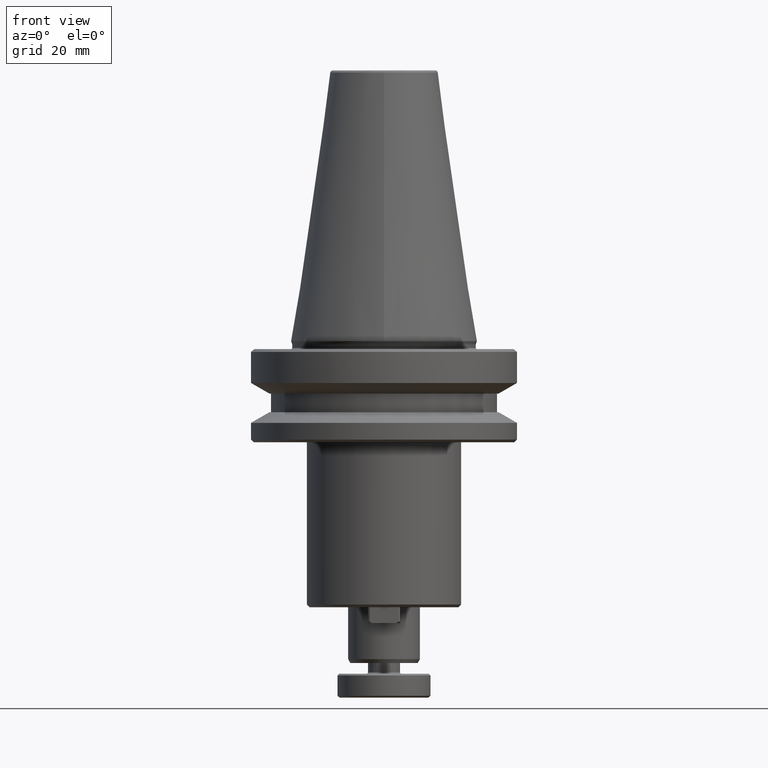
[diagram: clean part render]
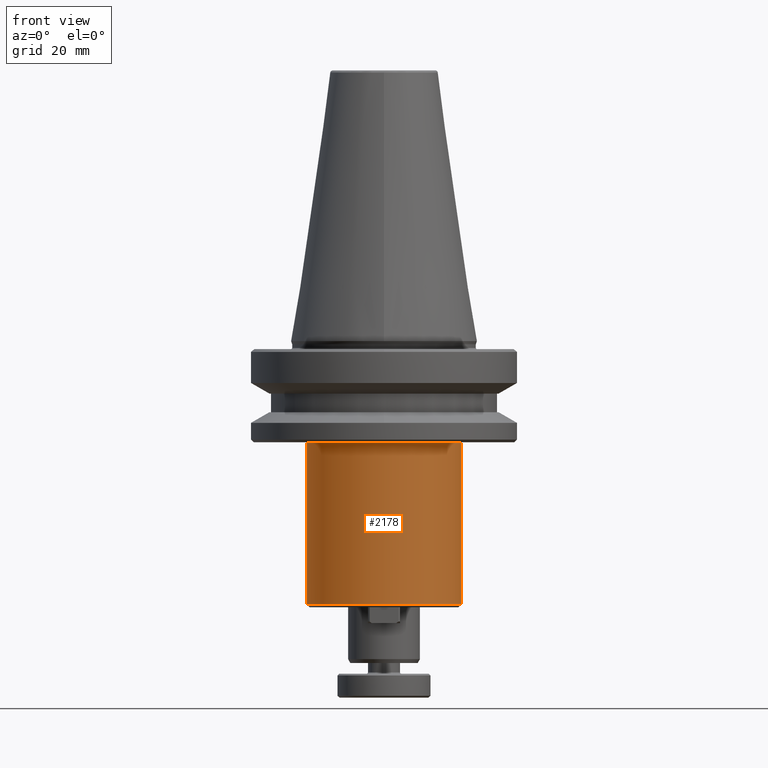
[diagram: same view with one face highlighted and labeled with its STEP entity id]
A machine part, front view. The second image highlights one B-rep face of the part: STEP entity #2178.
In plain terms, the highlighted cylindrical surface (partial cylindrical patch) has radius 29 mm, axis along (0, 0, 1).
Its self-contained STEP definition (entity closure, byte-faithful):
#6 = LINE ( 'NONE', #1743, #963 ) ;
#82 = CARTESIAN_POINT ( 'NONE',  ( -29.00000000000000000, 3.551475717527324000E-015, -37.99999999999999300 ) ) ;
#390 = EDGE_CURVE ( 'NONE', #1536, #2545, #688, .T. ) ;
#415 = DIRECTION ( 'NONE',  ( 1.000000000000000000, 0.0000000000000000000, 0.0000000000000000000 ) ) ;
#417 = DIRECTION ( 'NONE',  ( -0.0000000000000000000, -0.0000000000000000000, -1.000000000000000000 ) ) ;
#418 = CARTESIAN_POINT ( 'NONE',  ( 0.0000000000000000000, 0.0000000000000000000, -37.99999999999999300 ) ) ;
#524 = ORIENTED_EDGE ( 'NONE', *, *, #1593, .T. ) ;
#595 = ORIENTED_EDGE ( 'NONE', *, *, #390, .T. ) ;
#625 = CARTESIAN_POINT ( 'NONE',  ( -29.00000000000001400, 3.551475717527325600E-015, -98.99999999999998600 ) ) ;
#688 = CIRCLE ( 'NONE', #2435, 29.00000000000000000 ) ;
#800 = AXIS2_PLACEMENT_3D ( 'NONE', #2586, #2617, #2610 ) ;
#861 = DIRECTION ( 'NONE',  ( 0.0000000000000000000, 0.0000000000000000000, 1.000000000000000000 ) ) ;
#963 = VECTOR ( 'NONE', #861, 1000.000000000000000 ) ;
#1043 = ORIENTED_EDGE ( 'NONE', *, *, #2608, .T. ) ;
#1072 = ORIENTED_EDGE ( 'NONE', *, *, #2094, .F. ) ;
#1190 = CYLINDRICAL_SURFACE ( 'NONE', #800, 29.00000000000000000 ) ;
#1215 = DIRECTION ( 'NONE',  ( 0.0000000000000000000, 0.0000000000000000000, 1.000000000000000000 ) ) ;
#1274 = FACE_OUTER_BOUND ( 'NONE', #2571, .T. ) ;
#1536 = VERTEX_POINT ( 'NONE', #625 ) ;
#1568 = LINE ( 'NONE', #1969, #2680 ) ;
#1593 = EDGE_CURVE ( 'NONE', #2164, #1836, #2032, .T. ) ;
#1743 = CARTESIAN_POINT ( 'NONE',  ( -29.00000000000000000, 3.551475717527324000E-015, 118.5507178974871000 ) ) ;
#1836 = VERTEX_POINT ( 'NONE', #82 ) ;
#1878 = DIRECTION ( 'NONE',  ( 1.000000000000000000, 0.0000000000000000000, 0.0000000000000000000 ) ) ;
#1886 = AXIS2_PLACEMENT_3D ( 'NONE', #418, #417, #415 ) ;
#1902 = DIRECTION ( 'NONE',  ( 0.0000000000000000000, 0.0000000000000000000, 1.000000000000000000 ) ) ;
#1969 = CARTESIAN_POINT ( 'NONE',  ( 29.00000000000000000, 0.0000000000000000000, 118.5507178974871000 ) ) ;
#2032 = CIRCLE ( 'NONE', #1886, 29.00000000000000000 ) ;
#2052 = CARTESIAN_POINT ( 'NONE',  ( 29.00000000000001400, 0.0000000000000000000, -98.99999999999998600 ) ) ;
#2094 = EDGE_CURVE ( 'NONE', #1536, #1836, #6, .T. ) ;
#2164 = VERTEX_POINT ( 'NONE', #2635 ) ;
#2178 = ADVANCED_FACE ( 'NONE', ( #1274 ), #1190, .T. ) ;
#2349 = CARTESIAN_POINT ( 'NONE',  ( 0.0000000000000000000, 0.0000000000000000000, -98.99999999999998600 ) ) ;
#2435 = AXIS2_PLACEMENT_3D ( 'NONE', #2349, #1215, #1878 ) ;
#2545 = VERTEX_POINT ( 'NONE', #2052 ) ;
#2571 = EDGE_LOOP ( 'NONE', ( #1072, #595, #1043, #524 ) ) ;
#2586 = CARTESIAN_POINT ( 'NONE',  ( 0.0000000000000000000, 0.0000000000000000000, 118.5507178974871000 ) ) ;
#2608 = EDGE_CURVE ( 'NONE', #2545, #2164, #1568, .T. ) ;
#2610 = DIRECTION ( 'NONE',  ( 1.000000000000000000, 0.0000000000000000000, 0.0000000000000000000 ) ) ;
#2617 = DIRECTION ( 'NONE',  ( 0.0000000000000000000, 0.0000000000000000000, 1.000000000000000000 ) ) ;
#2635 = CARTESIAN_POINT ( 'NONE',  ( 29.00000000000000000, 0.0000000000000000000, -37.99999999999999300 ) ) ;
#2680 = VECTOR ( 'NONE', #1902, 1000.000000000000000 ) ;